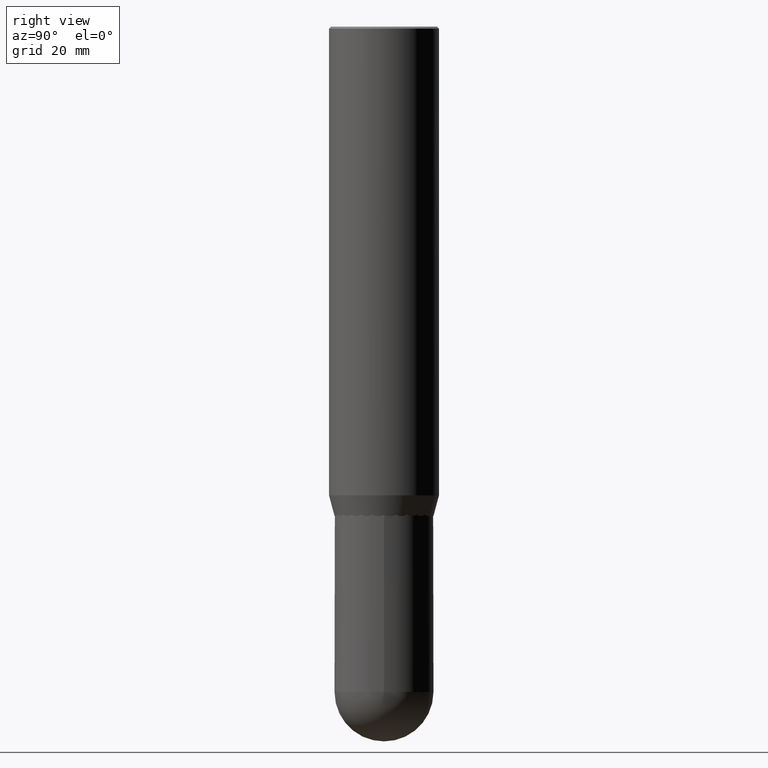
[diagram: clean part render]
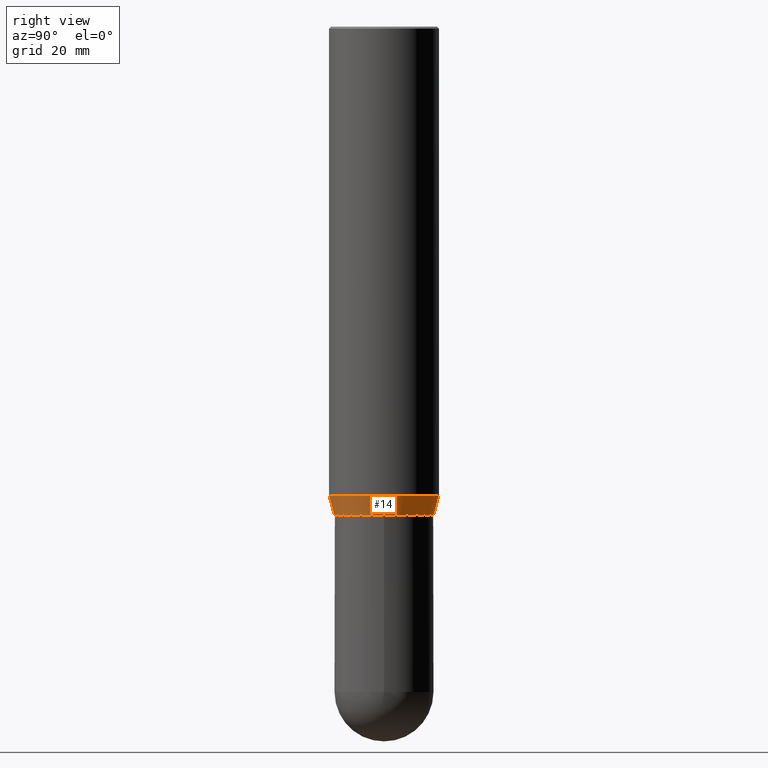
[diagram: same view with one face highlighted and labeled with its STEP entity id]
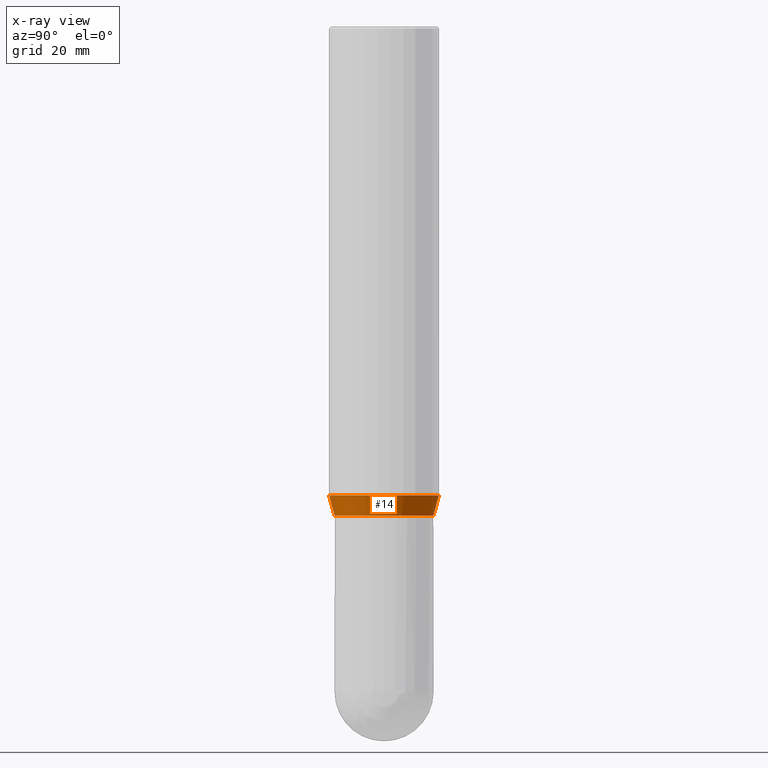
[diagram: x-ray of the same camera — body ghosted, the highlighted face saturated]
A machine part, right view. The second image highlights one B-rep face of the part: STEP entity #14.
The next image is the same camera in x-ray: the body ghosted, the highlighted face saturated — about 0% of this face is hidden behind the body in this view.
In plain terms, the highlighted conical surface has half-angle 15 deg.
Its self-contained STEP definition (entity closure, byte-faithful):
#3 = CARTESIAN_POINT ( 'NONE',  ( -2.474412824838044286E-15, -0.3543500000000124883, -3.503099999999998992 ) ) ;
#4 = EDGE_CURVE ( 'NONE', #173, #454, #297, .T. ) ;
#14 = ADVANCED_FACE ( 'NONE', ( #294 ), #472, .T. ) ;
#16 = CARTESIAN_POINT ( 'NONE',  ( 8.570752851263687408E-29, -1.222523554738153069E-14, -3.503100000000000325 ) ) ;
#30 = EDGE_LOOP ( 'NONE', ( #242, #299, #71, #395 ) ) ;
#33 = CIRCLE ( 'NONE', #318, 0.3543500000000002759 ) ;
#43 = LINE ( 'NONE', #3, #73 ) ;
#70 = CARTESIAN_POINT ( 'NONE',  ( -2.749192406205000781E-15, -0.3937000000000117628, -3.356243800722169546 ) ) ;
#71 = ORIENTED_EDGE ( 'NONE', *, *, #504, .F. ) ;
#73 = VECTOR ( 'NONE', #82, 39.37007874015748854 ) ;
#81 = VECTOR ( 'NONE', #344, 39.37007874015748143 ) ;
#82 = DIRECTION ( 'NONE',  ( -1.807323732225381021E-15, -0.2588190451025254579, 0.9659258262890669799 ) ) ;
#92 = DIRECTION ( 'NONE',  ( -6.982962677686265922E-15, -1.000000000000000000, 3.083784951222532539E-15 ) ) ;
#97 = DIRECTION ( 'NONE',  ( -2.446619523069192094E-29, 3.489833446770440452E-15, 1.000000000000000000 ) ) ;
#125 = CARTESIAN_POINT ( 'NONE',  ( 2.657607467426799497E-15, 0.3543499999999880634, -3.503100000000001213 ) ) ;
#159 = CARTESIAN_POINT ( 'NONE',  ( 2.797406750687596039E-15, 0.3936999999999882816, -3.356243800722171766 ) ) ;
#173 = VERTEX_POINT ( 'NONE', #125 ) ;
#179 = AXIS2_PLACEMENT_3D ( 'NONE', #16, #97, #92 ) ;
#189 = AXIS2_PLACEMENT_3D ( 'NONE', #455, #465, #380 ) ;
#209 = VERTEX_POINT ( 'NONE', #483 ) ;
#225 = CARTESIAN_POINT ( 'NONE',  ( 8.570752851263687408E-29, -1.222523554738153069E-14, -3.503100000000000325 ) ) ;
#242 = ORIENTED_EDGE ( 'NONE', *, *, #406, .T. ) ;
#259 = CIRCLE ( 'NONE', #189, 0.3937000000000000499 ) ;
#294 = FACE_OUTER_BOUND ( 'NONE', #30, .T. ) ;
#297 = LINE ( 'NONE', #347, #81 ) ;
#299 = ORIENTED_EDGE ( 'NONE', *, *, #4, .T. ) ;
#317 = DIRECTION ( 'NONE',  ( -6.982962677686265922E-15, -1.000000000000000000, 3.083784951222532539E-15 ) ) ;
#318 = AXIS2_PLACEMENT_3D ( 'NONE', #225, #400, #317 ) ;
#321 = VERTEX_POINT ( 'NONE', #70 ) ;
#344 = DIRECTION ( 'NONE',  ( 1.839019923739651986E-15, 0.2588190451025322303, 0.9659258262890650926 ) ) ;
#347 = CARTESIAN_POINT ( 'NONE',  ( 2.517808184166002560E-15, 0.3543499999999880634, -3.503100000000001213 ) ) ;
#380 = DIRECTION ( 'NONE',  ( -6.982962677686265133E-15, -1.000000000000000000, 4.163344669033674845E-15 ) ) ;
#391 = EDGE_CURVE ( 'NONE', #209, #321, #43, .T. ) ;
#395 = ORIENTED_EDGE ( 'NONE', *, *, #391, .F. ) ;
#400 = DIRECTION ( 'NONE',  ( -2.446619523069192094E-29, 3.489833446770440452E-15, 1.000000000000000000 ) ) ;
#406 = EDGE_CURVE ( 'NONE', #209, #173, #33, .T. ) ;
#454 = VERTEX_POINT ( 'NONE', #159 ) ;
#455 = CARTESIAN_POINT ( 'NONE',  ( 8.211451607026808771E-29, -1.171273187127617517E-14, -3.356243800722170434 ) ) ;
#465 = DIRECTION ( 'NONE',  ( -2.446619523069192094E-29, 3.489833446770440452E-15, 1.000000000000000000 ) ) ;
#472 = CONICAL_SURFACE ( 'NONE', #179, 0.3543500000000002759, 0.2617993877991577900 ) ;
#483 = CARTESIAN_POINT ( 'NONE',  ( -2.474412824838044286E-15, -0.3543500000000124883, -3.503099999999998992 ) ) ;
#504 = EDGE_CURVE ( 'NONE', #321, #454, #259, .T. ) ;